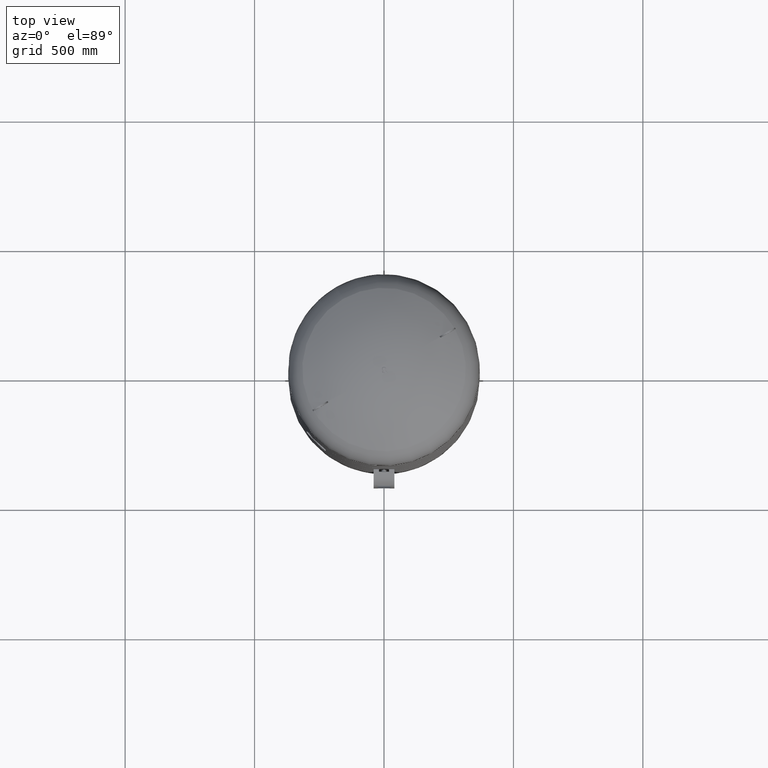
[diagram: clean part render]
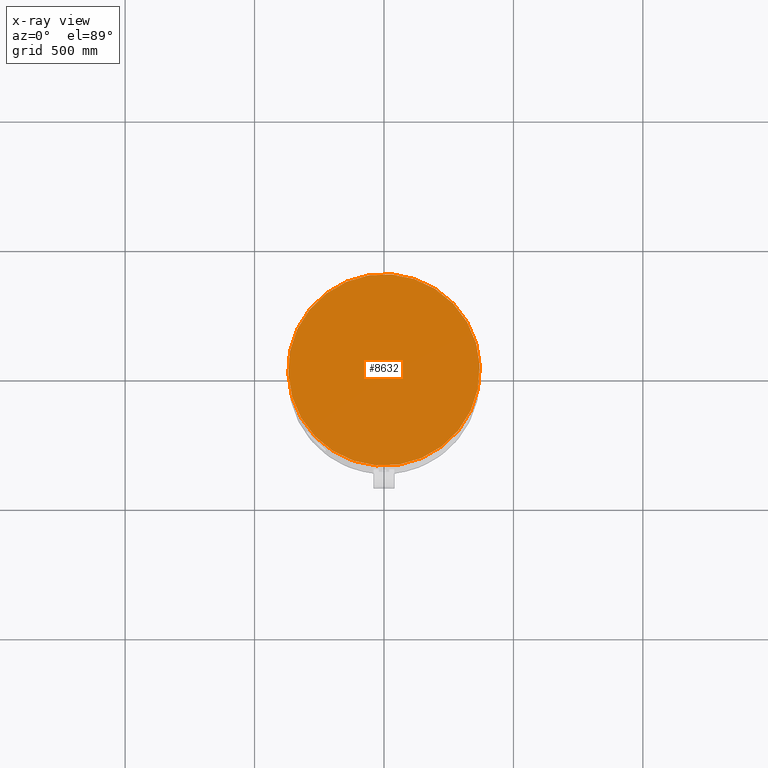
[diagram: x-ray — body ghosted, one internal face saturated and labeled with its STEP entity id]
A machine part, top view, then the same camera in x-ray: the body is ghosted and one INTERNAL B-rep face — a face not visible from any outside direction — is saturated and labeled: STEP entity #8632.
In plain terms, the highlighted planar face has unit normal (0, 0, -1).
Its self-contained STEP definition (entity closure, byte-faithful):
#7900=CARTESIAN_POINT('',(320.429399400242350,184.999999999999970,2384.0));
#7901=VERTEX_POINT('',#7900);
#7910=CARTESIAN_POINT('',(-320.429399400242350,-184.999999999999970,2384.0));
#7911=VERTEX_POINT('',#7910);
#7912=CARTESIAN_POINT('',(-2.685504E-015,-4.164022E-014,2384.0));
#7913=DIRECTION('',(-1.060575E-016,-6.123234E-017,-1.000000000000000));
#7914=DIRECTION('',(0.866025403784439,0.500000000000000,-1.224647E-016));
#7915=AXIS2_PLACEMENT_3D('',#7912,#7913,#7914);
#7916=CIRCLE('',#7915,370.0);
#7917=EDGE_CURVE('',#7911,#7901,#7916,.T.);
#8613=CARTESIAN_POINT('',(-2.685504E-015,-4.164022E-014,2384.0));
#8614=DIRECTION('',(-1.060575E-016,-6.123234E-017,-1.000000000000000));
#8615=DIRECTION('',(0.866025403784439,0.500000000000000,-1.224647E-016));
#8616=AXIS2_PLACEMENT_3D('',#8613,#8614,#8615);
#8617=CIRCLE('',#8616,370.0);
#8618=EDGE_CURVE('',#7901,#7911,#8617,.T.);
#8623=CARTESIAN_POINT('',(160.214699700121200,92.499999999999957,2384.0));
#8624=DIRECTION('',(0.0,0.0,-1.0));
#8625=DIRECTION('',(0.500000000000000,-0.866025403784439,0.0));
#8626=AXIS2_PLACEMENT_3D('',#8623,#8624,#8625);
#8627=PLANE('',#8626);
#8628=ORIENTED_EDGE('',*,*,#8618,.T.);
#8629=ORIENTED_EDGE('',*,*,#7917,.T.);
#8630=EDGE_LOOP('',(#8628,#8629));
#8631=FACE_OUTER_BOUND('',#8630,.T.);
#8632=ADVANCED_FACE('',(#8631),#8627,.T.);